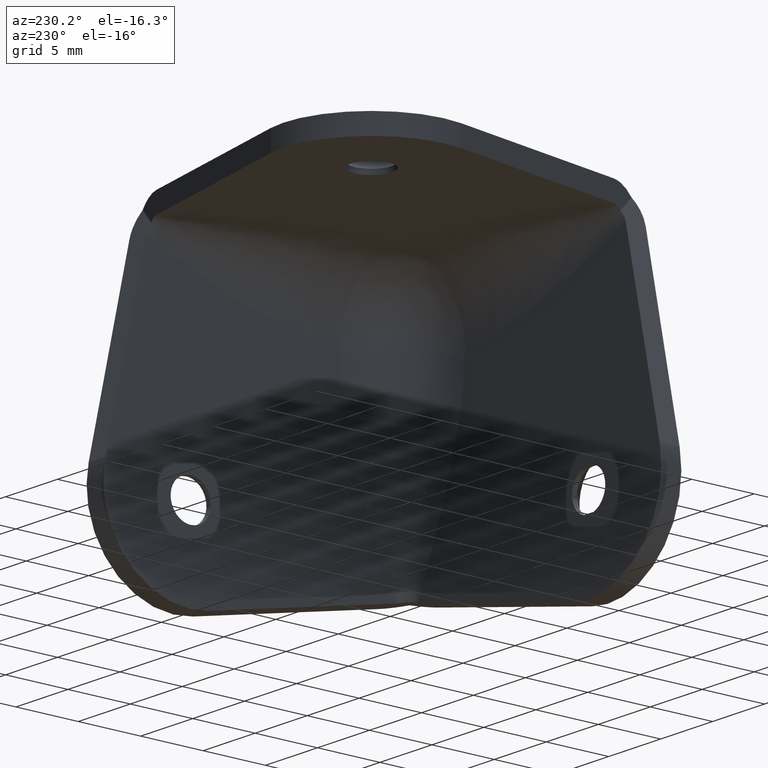
[diagram: clean part render]
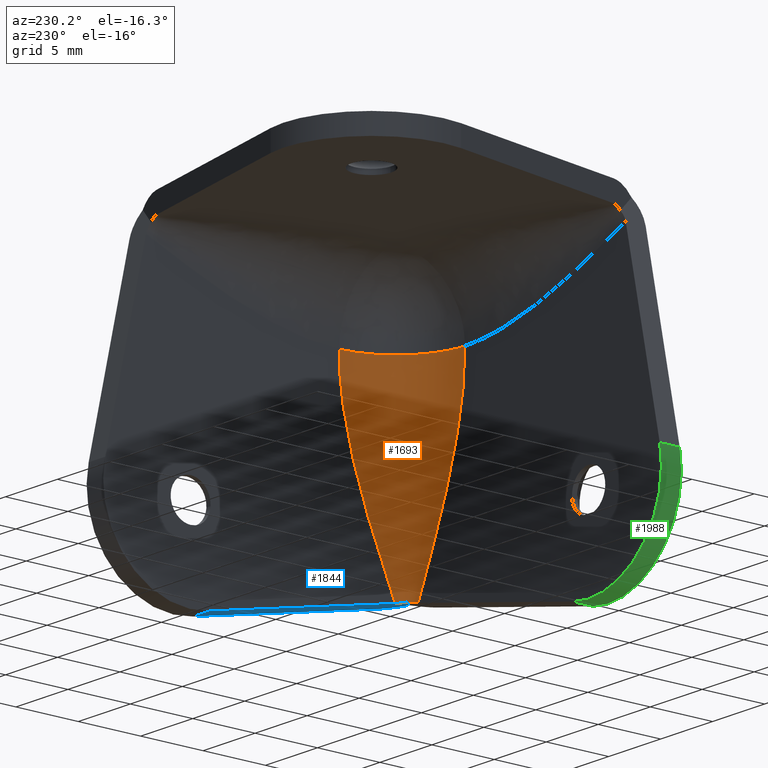
[diagram: same view with three faces highlighted in distinct colors, each labeled with its STEP entity id]
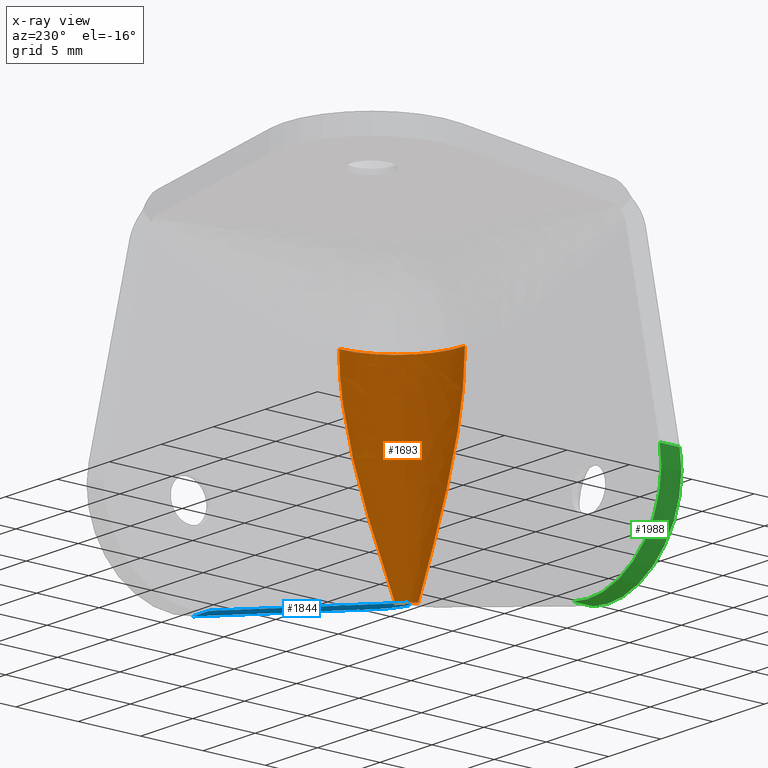
[diagram: x-ray of the same camera — body ghosted, the three highlighted faces saturated]
A machine part, auxiliary view with three faces highlighted in distinct colors.
The next image is the same camera in x-ray (body ghosted, the three faces saturated) — at least one of them is partly hidden behind the body in this view.
Their STEP definitions:

[orange] entity #1693 — the highlighted face is a freeform B-spline surface patch.
#1428=CARTESIAN_POINT('',(-7.100000000000001,1.600000000000000,18.899999999999999));
#1429=VERTEX_POINT('',#1428);
#1496=CARTESIAN_POINT('',(-1.600000000000000,7.100000000000001,18.899999999999999));
#1497=VERTEX_POINT('',#1496);
#1511=CARTESIAN_POINT('',(-1.600000000000000,7.100000000000001,18.899999999999999));
#1512=CARTESIAN_POINT('',(-1.599999999999993,1.599999999999993,18.899999999999974));
#1513=CARTESIAN_POINT('',(-7.100000000000001,1.600000000000000,18.899999999999999));
#1521=(BOUNDED_CURVE()B_SPLINE_CURVE(2,(#1511,#1512,#1513),.UNSPECIFIED.,.F.,.U.)CURVE()GEOMETRIC_REPRESENTATION_ITEM()QUASI_UNIFORM_CURVE()RATIONAL_B_SPLINE_CURVE((1.0,0.707106781186548,1.0))REPRESENTATION_ITEM(''));
#1522=EDGE_CURVE('',#1497,#1429,#1521,.T.);
#1611=CARTESIAN_POINT('',(-7.100000000000001,1.600000000000000,18.899999999999999));
#1612=CARTESIAN_POINT('',(-1.599999999999993,1.599999999999993,18.899999999999974));
#1613=CARTESIAN_POINT('',(-1.600000000000000,7.100000000000001,18.899999999999999));
#1614=CARTESIAN_POINT('',(-7.100000000000001,1.600000000000000,13.743290806377921));
#1615=CARTESIAN_POINT('',(-1.599999999999993,1.599999999999993,13.743290806377919));
#1616=CARTESIAN_POINT('',(-1.600000000000000,7.100000000000001,13.743290806377921));
#1617=CARTESIAN_POINT('',(-4.850000000000001,1.600000000000000,8.586581612755859));
#1618=CARTESIAN_POINT('',(-1.599999999999993,1.599999999999993,8.586581612755854));
#1619=CARTESIAN_POINT('',(-1.600000000000000,4.850000000000001,8.586581612755859));
#1620=CARTESIAN_POINT('',(-2.600000000000000,1.600000000000000,3.429872419133785));
#1621=CARTESIAN_POINT('',(-1.599999999999993,1.599999999999993,3.429872419133786));
#1622=CARTESIAN_POINT('',(-1.600000000000000,2.600000000000000,3.429872419133785));
#1623=CARTESIAN_POINT('',(-2.586500000000000,1.600000000000000,3.398932163972052));
#1624=CARTESIAN_POINT('',(-1.599999999999993,1.599999999999993,3.398932163972052));
#1625=CARTESIAN_POINT('',(-1.600000000000000,2.586500000000000,3.398932163972052));
#1626=CARTESIAN_POINT('',(-2.572999999999999,1.600000000000000,3.367991908810319));
#1627=CARTESIAN_POINT('',(-1.599999999999993,1.599999999999993,3.367991908810320));
#1628=CARTESIAN_POINT('',(-1.600000000000000,2.572999999999999,3.367991908810319));
#1629=CARTESIAN_POINT('',(-2.559499999999999,1.600000000000000,3.337051653648587));
#1630=CARTESIAN_POINT('',(-1.599999999999993,1.599999999999993,3.337051653648586));
#1631=CARTESIAN_POINT('',(-1.600000000000000,2.559499999999999,3.337051653648587));
#1639=(BOUNDED_SURFACE()B_SPLINE_SURFACE(2,3,((#1611,#1614,#1617,#1620,#1623,#1626,#1629),(#1612,#1615,#1618,#1621,#1624,#1627,#1630),(#1613,#1616,#1619,#1622,#1625,#1628,#1631)),.UNSPECIFIED.,.F.,.F.,.U.)B_SPLINE_SURFACE_WITH_KNOTS((3,3),(4,3,4),(0.0,9.112698372208090),(0.0,16.878606203365251,16.979877840585448),.UNSPECIFIED.)GEOMETRIC_REPRESENTATION_ITEM()RATIONAL_B_SPLINE_SURFACE(((1.0,1.0,1.0,1.0,1.0,1.0,1.0),(0.707106781186548,0.707106781186548,0.707106781186548,0.707106781186548,0.707106781186548,0.707106781186548,0.707106781186548),(1.0,1.0,1.0,1.0,1.0,1.0,1.0)))REPRESENTATION_ITEM('')SURFACE());
#1640=CARTESIAN_POINT('',(-2.600000000000000,1.600000000000000,3.429872419133790));
#1641=VERTEX_POINT('',#1640);
#1642=CARTESIAN_POINT('',(-1.912167872941795,1.912167872941630,3.580700137072970));
#1643=VERTEX_POINT('',#1642);
#1644=CARTESIAN_POINT('',(-2.600000000000000,1.600000000000000,3.429872419133785));
#1645=CARTESIAN_POINT('',(-2.535070705456864,1.600000000000000,3.444110104374258));
#1646=CARTESIAN_POINT('',(-2.471392921323096,1.607499179324188,3.458073358613916));
#1647=CARTESIAN_POINT('',(-2.346298245734169,1.636045039857254,3.485504098911130));
#1648=CARTESIAN_POINT('',(-2.284355147124131,1.657449200141914,3.499086971588783));
#1649=CARTESIAN_POINT('',(-2.167354304843930,1.711701258646900,3.524742897422829));
#1650=CARTESIAN_POINT('',(-2.111811727797640,1.744543428269874,3.536922264763785));
#1651=CARTESIAN_POINT('',(-2.006402485927516,1.821196672557844,3.560036386328538));
#1652=CARTESIAN_POINT('',(-1.957281033023185,1.864526521987537,3.570807730602755));
#1653=CARTESIAN_POINT('',(-1.912167872941795,1.912167872941630,3.580700137072970));
#1654=B_SPLINE_CURVE_WITH_KNOTS('',3,(#1644,#1645,#1646,#1647,#1648,#1649,#1650,#1651,#1652,#1653),.UNSPECIFIED.,.F.,.U.,(4,2,2,2,4),(0.0,0.250000000000000,0.500000000000000,0.750000000000000,1.0),.UNSPECIFIED.);
#1655=EDGE_CURVE('',#1641,#1643,#1654,.T.);
#1656=ORIENTED_EDGE('',*,*,#1655,.F.);
#1657=CARTESIAN_POINT('',(-7.100000000000001,1.600000000000000,18.899999999999999));
#1658=CARTESIAN_POINT('',(-7.100000000000001,1.600000000000000,13.743290806377921));
#1659=CARTESIAN_POINT('',(-4.850000000000001,1.600000000000000,8.586581612755859));
#1660=CARTESIAN_POINT('',(-2.600000000000000,1.600000000000000,3.429872419133785));
#1661=B_SPLINE_CURVE_WITH_KNOTS('',3,(#1657,#1658,#1659,#1660),.UNSPECIFIED.,.F.,.U.,(4,4),(0.0,0.870967741935484),.UNSPECIFIED.);
#1662=EDGE_CURVE('',#1429,#1641,#1661,.T.);
#1663=ORIENTED_EDGE('',*,*,#1662,.F.);
#1664=ORIENTED_EDGE('',*,*,#1522,.F.);
#1665=CARTESIAN_POINT('',(-1.600000000000000,2.600000000000000,3.429872419133785));
#1666=VERTEX_POINT('',#1665);
#1667=CARTESIAN_POINT('',(-1.600000000000000,2.600000000000000,3.429872419133785));
#1668=CARTESIAN_POINT('',(-1.600000000000000,4.850000000000001,8.586581612755859));
#1669=CARTESIAN_POINT('',(-1.600000000000000,7.100000000000001,13.743290806377921));
#1670=CARTESIAN_POINT('',(-1.600000000000000,7.100000000000001,18.899999999999999));
#1671=B_SPLINE_CURVE_WITH_KNOTS('',3,(#1667,#1668,#1669,#1670),.UNSPECIFIED.,.F.,.U.,(4,4),(0.0,0.870967741935484),.UNSPECIFIED.);
#1672=EDGE_CURVE('',#1666,#1497,#1671,.T.);
#1673=ORIENTED_EDGE('',*,*,#1672,.F.);
#1674=CARTESIAN_POINT('',(-1.912167872941795,1.912167872941630,3.580700137072970));
#1675=CARTESIAN_POINT('',(-1.864410042838371,1.957391330955491,3.570783544489939));
#1676=CARTESIAN_POINT('',(-1.821503191137913,2.006090341648501,3.560104833275728));
#1677=CARTESIAN_POINT('',(-1.764454689237565,2.084377483659802,3.542938041395792));
#1678=CARTESIAN_POINT('',(-1.746665542267282,2.111352313883136,3.537023004972896));
#1679=CARTESIAN_POINT('',(-1.713658682886042,2.167144315302988,3.524788943895518));
#1680=CARTESIAN_POINT('',(-1.698362853702635,2.196143611798358,3.518429982834849));
#1681=CARTESIAN_POINT('',(-1.657367365301196,2.284484961620167,3.499058505887015));
#1682=CARTESIAN_POINT('',(-1.636410870678723,2.345123093793032,3.485761786039339));
#1683=CARTESIAN_POINT('',(-1.614890932047248,2.438793011484178,3.465221861588112));
#1684=CARTESIAN_POINT('',(-1.609382031148282,2.470471705408405,3.458275362691182));
#1685=CARTESIAN_POINT('',(-1.601924773334345,2.534803268594414,3.444168747886342));
#1686=CARTESIAN_POINT('',(-1.599999999999999,2.567434061596322,3.437013472857140));
#1687=CARTESIAN_POINT('',(-1.600000000000000,2.600000000000000,3.429872419133785));
#1688=B_SPLINE_CURVE_WITH_KNOTS('',3,(#1674,#1675,#1676,#1677,#1678,#1679,#1680,#1681,#1682,#1683,#1684,#1685,#1686,#1687),.UNSPECIFIED.,.F.,.U.,(4,2,2,2,2,2,4),(0.0,0.249999999999999,0.375000000000000,0.500000000000000,0.750000000000001,0.875000000000001,1.0),.UNSPECIFIED.);
#1689=EDGE_CURVE('',#1643,#1666,#1688,.T.);
#1690=ORIENTED_EDGE('',*,*,#1689,.F.);
#1691=EDGE_LOOP('',(#1656,#1663,#1664,#1673,#1690));
#1692=FACE_OUTER_BOUND('',#1691,.T.);
#1693=ADVANCED_FACE('',(#1692),#1639,.T.);

[blue] entity #1844 — the highlighted face is a freeform B-spline surface patch.
#1220=CARTESIAN_POINT('',(0.0,2.600000000000000,3.429872419133785));
#1221=VERTEX_POINT('',#1220);
#1222=CARTESIAN_POINT('',(-0.811627572432028,0.811627572431861,3.822026436755820));
#1223=VERTEX_POINT('',#1222);
#1224=CARTESIAN_POINT('',(0.0,2.600000000000000,3.429872419133785));
#1225=CARTESIAN_POINT('',(-1.486162E-014,2.431183635018198,3.466890444432901));
#1226=CARTESIAN_POINT('',(-0.019497944166818,2.265621211227399,3.503194946032207));
#1227=CARTESIAN_POINT('',(-0.075162268867111,2.021686281032403,3.556684958201760));
#1228=CARTESIAN_POINT('',(-0.098162864159581,1.941116584476198,3.574352268274340));
#1229=CARTESIAN_POINT('',(-0.153041156588270,1.781458658696911,3.609362032501519));
#1230=CARTESIAN_POINT('',(-0.184631093207110,1.703271546063378,3.626506889955623));
#1231=CARTESIAN_POINT('',(-0.290421630199577,1.475119058970108,3.676536130546043));
#1232=CARTESIAN_POINT('',(-0.375810230260137,1.330707507595583,3.708202672251546));
#1233=CARTESIAN_POINT('',(-0.525281854478326,1.125157753522331,3.753275589189019));
#1234=CARTESIAN_POINT('',(-0.578547762714535,1.058753512308664,3.767836700497635));
#1235=CARTESIAN_POINT('',(-0.690678428236521,0.931418739509135,3.795758648950074));
#1236=CARTESIAN_POINT('',(-0.749694626831284,0.870275617125048,3.809166102969860));
#1237=CARTESIAN_POINT('',(-0.811627572432028,0.811627572431861,3.822026436755820));
#1238=B_SPLINE_CURVE_WITH_KNOTS('',3,(#1224,#1225,#1226,#1227,#1228,#1229,#1230,#1231,#1232,#1233,#1234,#1235,#1236,#1237),.UNSPECIFIED.,.F.,.U.,(4,2,2,2,2,2,4),(0.0,0.250000000000000,0.375000000000000,0.500000000000000,0.750000000000000,0.875000000000000,1.0),.UNSPECIFIED.);
#1239=EDGE_CURVE('',#1221,#1223,#1238,.T.);
#1642=CARTESIAN_POINT('',(-1.912167872941795,1.912167872941630,3.580700137072970));
#1643=VERTEX_POINT('',#1642);
#1665=CARTESIAN_POINT('',(-1.600000000000000,2.600000000000000,3.429872419133785));
#1666=VERTEX_POINT('',#1665);
#1674=CARTESIAN_POINT('',(-1.912167872941795,1.912167872941630,3.580700137072970));
#1675=CARTESIAN_POINT('',(-1.864410042838371,1.957391330955491,3.570783544489939));
#1676=CARTESIAN_POINT('',(-1.821503191137913,2.006090341648501,3.560104833275728));
#1677=CARTESIAN_POINT('',(-1.764454689237565,2.084377483659802,3.542938041395792));
#1678=CARTESIAN_POINT('',(-1.746665542267282,2.111352313883136,3.537023004972896));
#1679=CARTESIAN_POINT('',(-1.713658682886042,2.167144315302988,3.524788943895518));
#1680=CARTESIAN_POINT('',(-1.698362853702635,2.196143611798358,3.518429982834849));
#1681=CARTESIAN_POINT('',(-1.657367365301196,2.284484961620167,3.499058505887015));
#1682=CARTESIAN_POINT('',(-1.636410870678723,2.345123093793032,3.485761786039339));
#1683=CARTESIAN_POINT('',(-1.614890932047248,2.438793011484178,3.465221861588112));
#1684=CARTESIAN_POINT('',(-1.609382031148282,2.470471705408405,3.458275362691182));
#1685=CARTESIAN_POINT('',(-1.601924773334345,2.534803268594414,3.444168747886342));
#1686=CARTESIAN_POINT('',(-1.599999999999999,2.567434061596322,3.437013472857140));
#1687=CARTESIAN_POINT('',(-1.600000000000000,2.600000000000000,3.429872419133785));
#1688=B_SPLINE_CURVE_WITH_KNOTS('',3,(#1674,#1675,#1676,#1677,#1678,#1679,#1680,#1681,#1682,#1683,#1684,#1685,#1686,#1687),.UNSPECIFIED.,.F.,.U.,(4,2,2,2,2,2,4),(0.0,0.249999999999999,0.375000000000000,0.500000000000000,0.750000000000001,0.875000000000001,1.0),.UNSPECIFIED.);
#1689=EDGE_CURVE('',#1643,#1666,#1688,.T.);
#1811=CARTESIAN_POINT('',(-2.007680690389213,-0.021989814728571,4.004821923028805));
#1812=CARTESIAN_POINT('',(-2.007680690389213,18.334282834795200,-0.020338584430292));
#1813=CARTESIAN_POINT('',(0.095512834543531,-0.021989814728571,4.004821923028805));
#1814=CARTESIAN_POINT('',(0.095512834543531,18.334282834795200,-0.020338584430292));
#1815=B_SPLINE_SURFACE_WITH_KNOTS('',1,1,((#1811,#1813),(#1812,#1814)),.UNSPECIFIED.,.F.,.F.,.U.,(2,2),(2,2),(0.0,18.792409709626462),(0.0,2.103193524932744),.UNSPECIFIED.);
#1816=CARTESIAN_POINT('',(0.0,17.500664999999898,0.162457000000004));
#1817=VERTEX_POINT('',#1816);
#1818=CARTESIAN_POINT('',(0.0,2.600000000000000,3.429872419133785));
#1819=CARTESIAN_POINT('',(0.0,17.500664999999898,0.162457000000004));
#1820=QUASI_UNIFORM_CURVE('',1,(#1818,#1819),.UNSPECIFIED.,.F.,.U.);
#1821=EDGE_CURVE('',#1221,#1817,#1820,.T.);
#1822=ORIENTED_EDGE('',*,*,#1821,.F.);
#1823=ORIENTED_EDGE('',*,*,#1239,.T.);
#1824=CARTESIAN_POINT('',(-0.811627572432028,0.811627572431861,3.822026436755820));
#1825=CARTESIAN_POINT('',(-1.912167872941795,1.912167872941630,3.580700137072970));
#1826=QUASI_UNIFORM_CURVE('',1,(#1824,#1825),.UNSPECIFIED.,.F.,.U.);
#1827=EDGE_CURVE('',#1223,#1643,#1826,.T.);
#1828=ORIENTED_EDGE('',*,*,#1827,.T.);
#1829=ORIENTED_EDGE('',*,*,#1689,.T.);
#1830=CARTESIAN_POINT('',(-1.600000000000045,17.500664999999898,0.162457000000004));
#1831=VERTEX_POINT('',#1830);
#1832=CARTESIAN_POINT('',(-1.600000000000000,2.600000000000000,3.429872419133785));
#1833=CARTESIAN_POINT('',(-1.600000000000045,17.500664999999898,0.162457000000004));
#1834=QUASI_UNIFORM_CURVE('',1,(#1832,#1833),.UNSPECIFIED.,.F.,.U.);
#1835=EDGE_CURVE('',#1666,#1831,#1834,.T.);
#1836=ORIENTED_EDGE('',*,*,#1835,.T.);
#1837=CARTESIAN_POINT('',(-1.600000000000045,17.500664999999898,0.162457000000004));
#1838=CARTESIAN_POINT('',(0.0,17.500664999999898,0.162457000000004));
#1839=QUASI_UNIFORM_CURVE('',1,(#1837,#1838),.UNSPECIFIED.,.F.,.U.);
#1840=EDGE_CURVE('',#1831,#1817,#1839,.T.);
#1841=ORIENTED_EDGE('',*,*,#1840,.T.);
#1842=EDGE_LOOP('',(#1822,#1823,#1828,#1829,#1836,#1841));
#1843=FACE_OUTER_BOUND('',#1842,.T.);
#1844=ADVANCED_FACE('',(#1843),#1815,.T.);

[green] entity #1988 — the highlighted face is a freeform B-spline surface patch.
#1909=CARTESIAN_POINT('',(-17.500664717419600,0.0,0.162457041421270));
#1910=VERTEX_POINT('',#1909);
#1916=CARTESIAN_POINT('',(-17.500664717419600,1.600000000000045,0.162457041421270));
#1917=VERTEX_POINT('',#1916);
#1918=CARTESIAN_POINT('',(-17.500664717419600,1.600000000000045,0.162457041421270));
#1919=CARTESIAN_POINT('',(-17.500664717419600,0.0,0.162457041421270));
#1920=QUASI_UNIFORM_CURVE('',1,(#1918,#1919),.UNSPECIFIED.,.F.,.U.);
#1921=EDGE_CURVE('',#1917,#1910,#1920,.T.);
#1932=CARTESIAN_POINT('',(-17.290909672509020,1.640000000000047,0.211847802790752));
#1933=CARTESIAN_POINT('',(-17.290909672509020,-0.041000000000001,0.211847802790752));
#1934=CARTESIAN_POINT('',(-29.288928062422396,1.640000000000047,-2.808959124268147));
#1935=CARTESIAN_POINT('',(-29.288928062422396,-0.041000000000001,-2.808959124268147));
#1936=CARTESIAN_POINT('',(-25.698828687755309,1.640000000000047,9.031180497175580));
#1937=CARTESIAN_POINT('',(-25.698828687755309,-0.041000000000001,9.031180497175580));
#1945=(BOUNDED_SURFACE()B_SPLINE_SURFACE(1,2,((#1932,#1934,#1936),(#1933,#1935,#1937)),.UNSPECIFIED.,.F.,.F.,.U.)B_SPLINE_SURFACE_WITH_KNOTS((2,2),(3,3),(0.0,1.0),(0.0,16.329117375115452),.UNSPECIFIED.)GEOMETRIC_REPRESENTATION_ITEM()RATIONAL_B_SPLINE_SURFACE(((1.0,0.492423560103467,1.0),(1.0,0.492423560103467,1.0)))REPRESENTATION_ITEM('')SURFACE());
#1946=CARTESIAN_POINT('',(-25.837543000000000,0.0,8.499335000000000));
#1947=VERTEX_POINT('',#1946);
#1948=CARTESIAN_POINT('',(-25.837543000000000,0.0,8.499335000000000));
#1949=CARTESIAN_POINT('',(-26.657861763789207,0.0,4.758366716959495));
#1950=CARTESIAN_POINT('',(-23.949747367580489,0.0,2.050252430968826));
#1951=CARTESIAN_POINT('',(-21.241632971371772,0.0,-0.657861855021844));
#1952=CARTESIAN_POINT('',(-17.500664717419600,0.0,0.162457041421271));
#1960=(BOUNDED_CURVE()B_SPLINE_CURVE(2,(#1948,#1949,#1950,#1951,#1952),.UNSPECIFIED.,.F.,.U.)B_SPLINE_CURVE_WITH_KNOTS((3,2,3),(0.0,0.500000000000000,1.0),.UNSPECIFIED.)CURVE()GEOMETRIC_REPRESENTATION_ITEM()RATIONAL_B_SPLINE_CURVE((1.0,0.877280007712256,1.0,0.877280007712256,1.0))REPRESENTATION_ITEM(''));
#1961=EDGE_CURVE('',#1947,#1910,#1960,.T.);
#1962=ORIENTED_EDGE('',*,*,#1961,.F.);
#1963=CARTESIAN_POINT('',(-25.837543000000000,1.600000000000045,8.499335000000000));
#1964=VERTEX_POINT('',#1963);
#1965=CARTESIAN_POINT('',(-25.837543000000000,1.600000000000045,8.499335000000000));
#1966=CARTESIAN_POINT('',(-25.837543000000000,0.0,8.499335000000000));
#1967=QUASI_UNIFORM_CURVE('',1,(#1965,#1966),.UNSPECIFIED.,.F.,.U.);
#1968=EDGE_CURVE('',#1964,#1947,#1967,.T.);
#1969=ORIENTED_EDGE('',*,*,#1968,.F.);
#1970=CARTESIAN_POINT('',(-25.837543000000000,1.600000000000045,8.499335000000000));
#1971=CARTESIAN_POINT('',(-26.657861763789207,1.600000000000045,4.758366716959495));
#1972=CARTESIAN_POINT('',(-23.949747367580489,1.600000000000045,2.050252430968826));
#1973=CARTESIAN_POINT('',(-21.241632971371772,1.600000000000045,-0.657861855021844));
#1974=CARTESIAN_POINT('',(-17.500664717419600,1.600000000000045,0.162457041421271));
#1982=(BOUNDED_CURVE()B_SPLINE_CURVE(2,(#1970,#1971,#1972,#1973,#1974),.UNSPECIFIED.,.F.,.U.)B_SPLINE_CURVE_WITH_KNOTS((3,2,3),(0.0,0.500000000000000,1.0),.UNSPECIFIED.)CURVE()GEOMETRIC_REPRESENTATION_ITEM()RATIONAL_B_SPLINE_CURVE((1.0,0.877280007712256,1.0,0.877280007712256,1.0))REPRESENTATION_ITEM(''));
#1983=EDGE_CURVE('',#1964,#1917,#1982,.T.);
#1984=ORIENTED_EDGE('',*,*,#1983,.T.);
#1985=ORIENTED_EDGE('',*,*,#1921,.T.);
#1986=EDGE_LOOP('',(#1962,#1969,#1984,#1985));
#1987=FACE_OUTER_BOUND('',#1986,.T.);
#1988=ADVANCED_FACE('',(#1987),#1945,.T.);